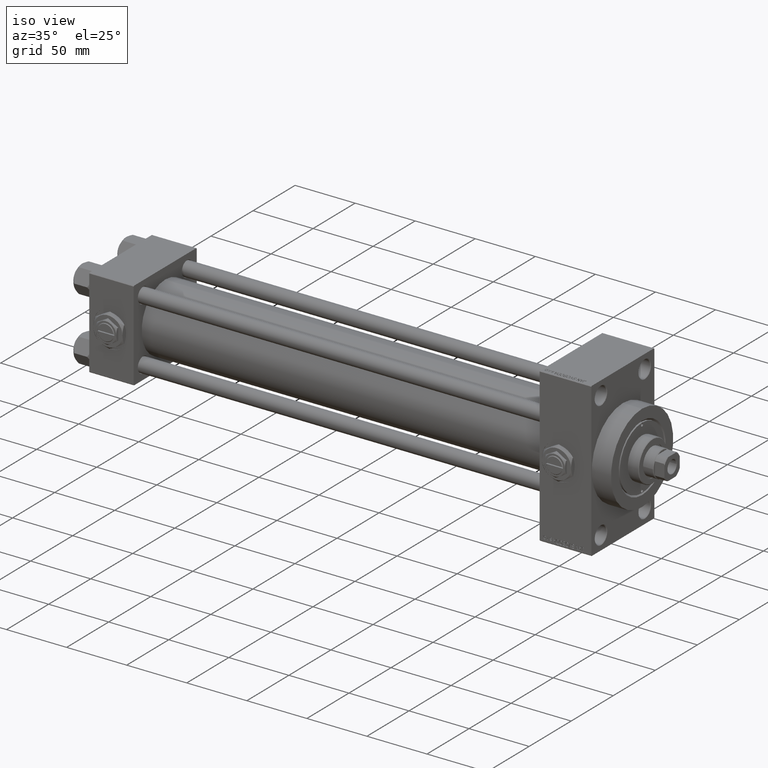
[diagram: clean part render]
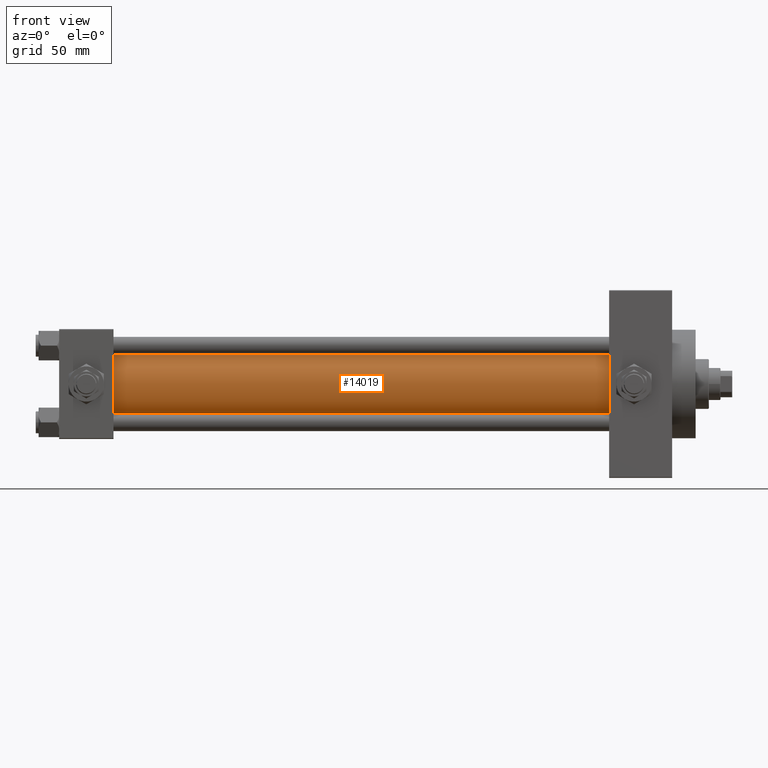
[diagram: tour spotlight — one face highlighted and labeled with its STEP entity id]
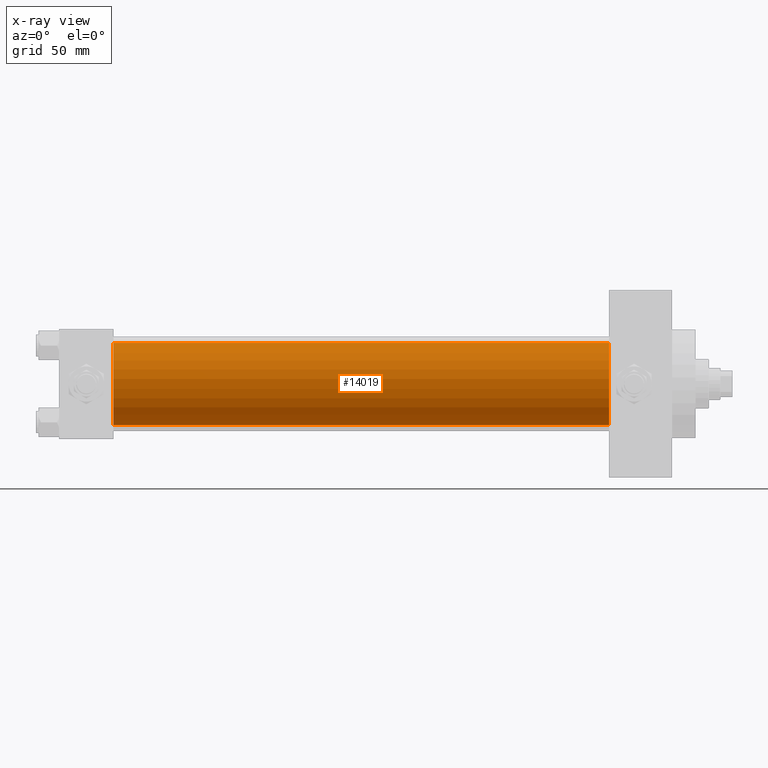
[diagram: x-ray of the same camera — body ghosted, this tour face saturated]
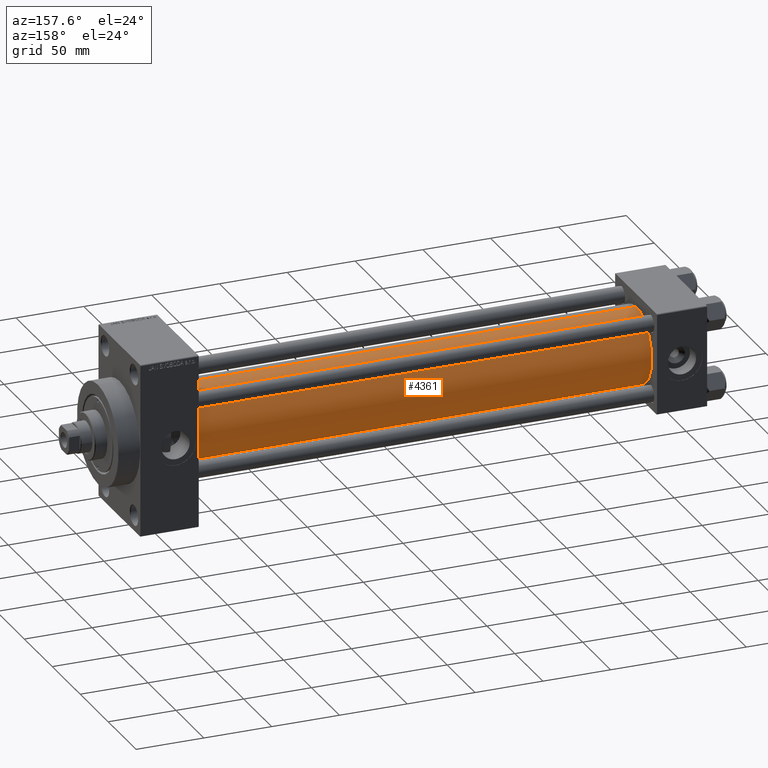
[diagram: tour spotlight — one face highlighted and labeled with its STEP entity id]
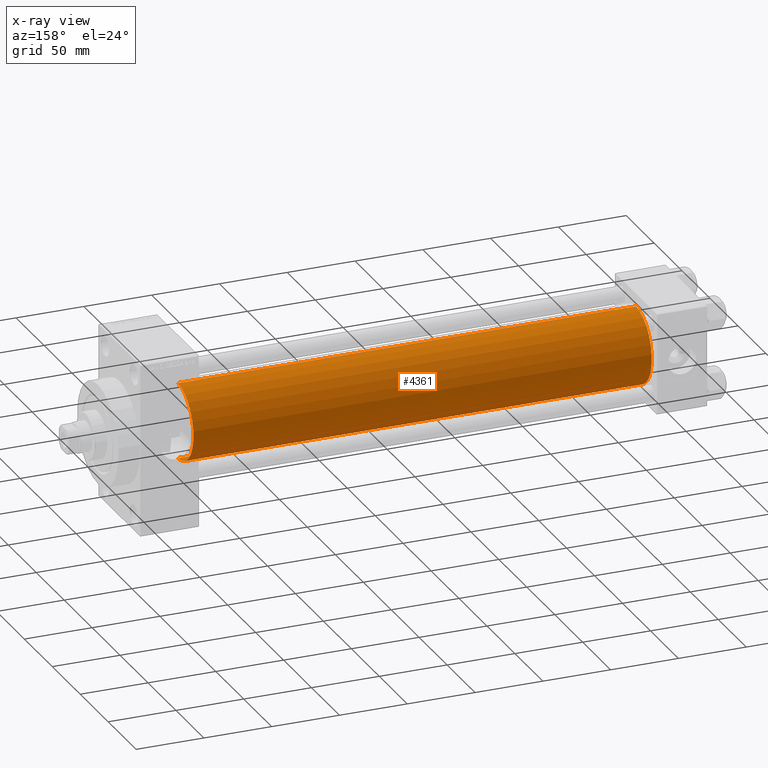
[diagram: x-ray of the same camera — body ghosted, this tour face saturated]
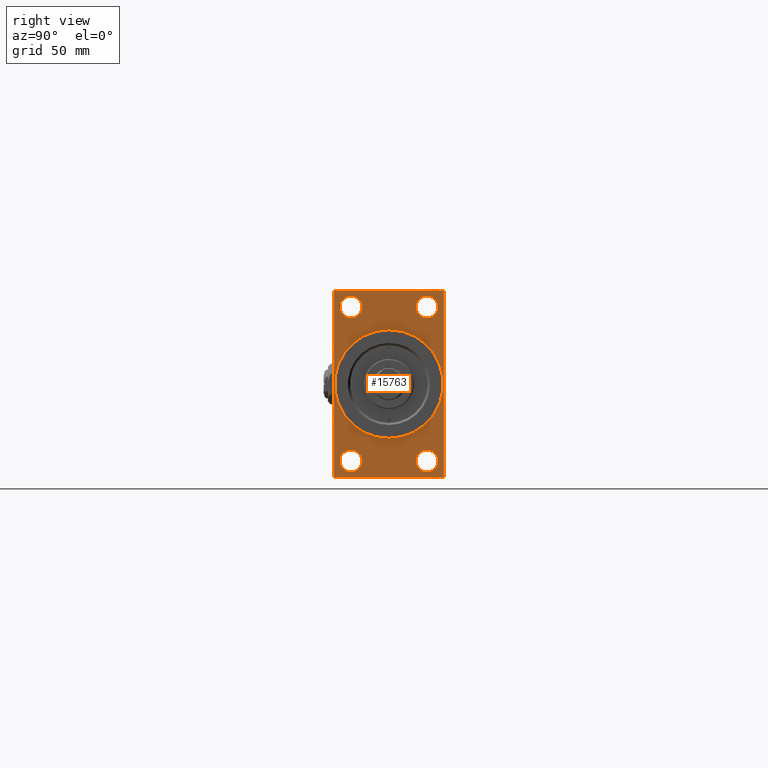
[diagram: tour spotlight — one face highlighted and labeled with its STEP entity id]
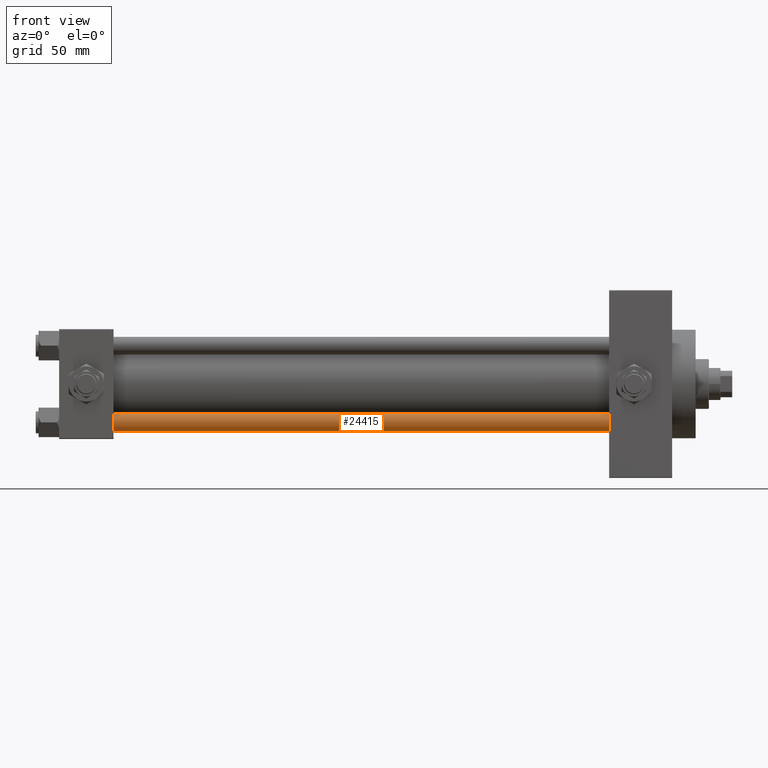
[diagram: tour spotlight — one face highlighted and labeled with its STEP entity id]
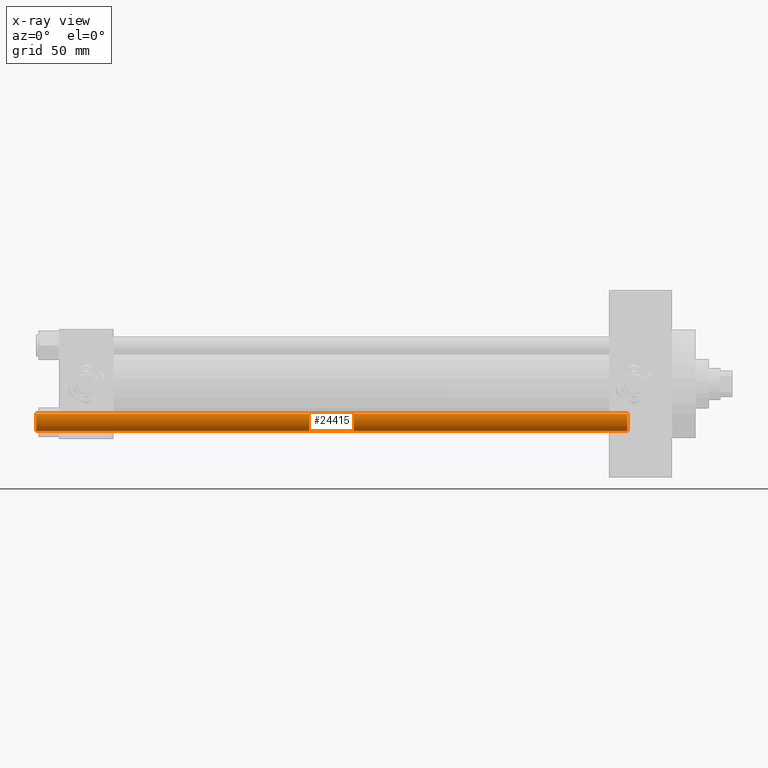
[diagram: x-ray of the same camera — body ghosted, this tour face saturated]
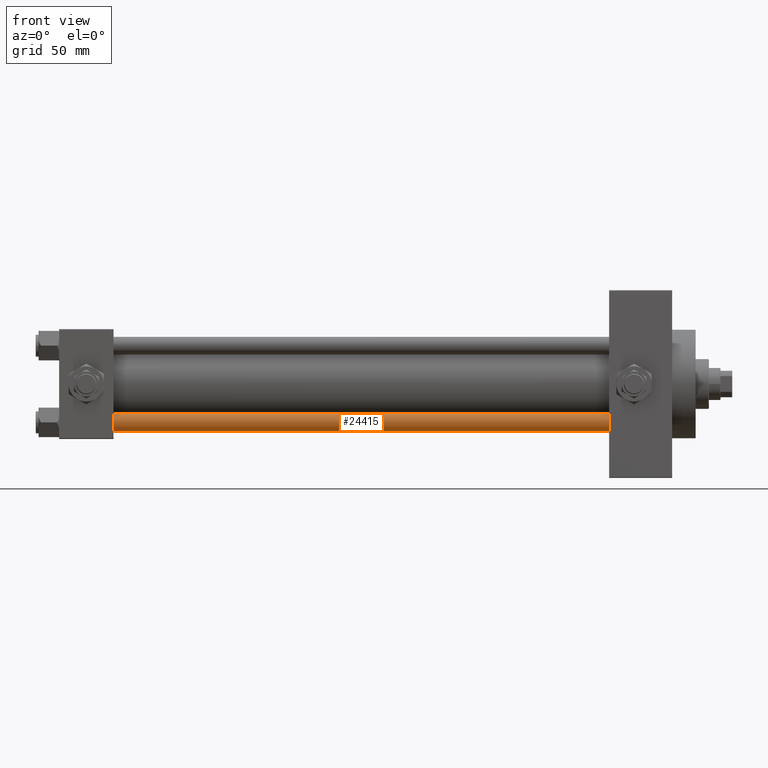
[diagram: tour spotlight — one face highlighted and labeled with its STEP entity id]
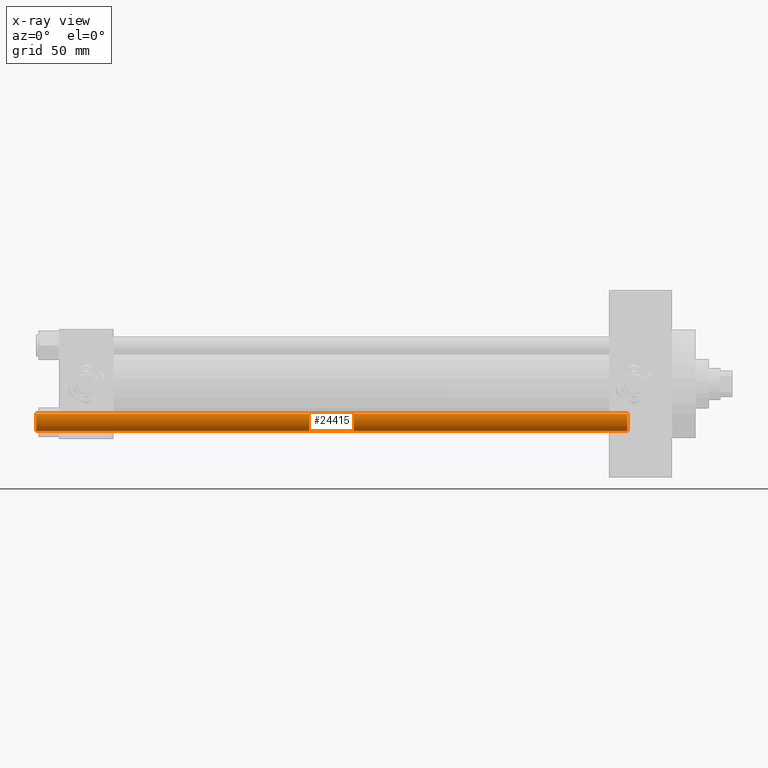
[diagram: x-ray of the same camera — body ghosted, this tour face saturated]
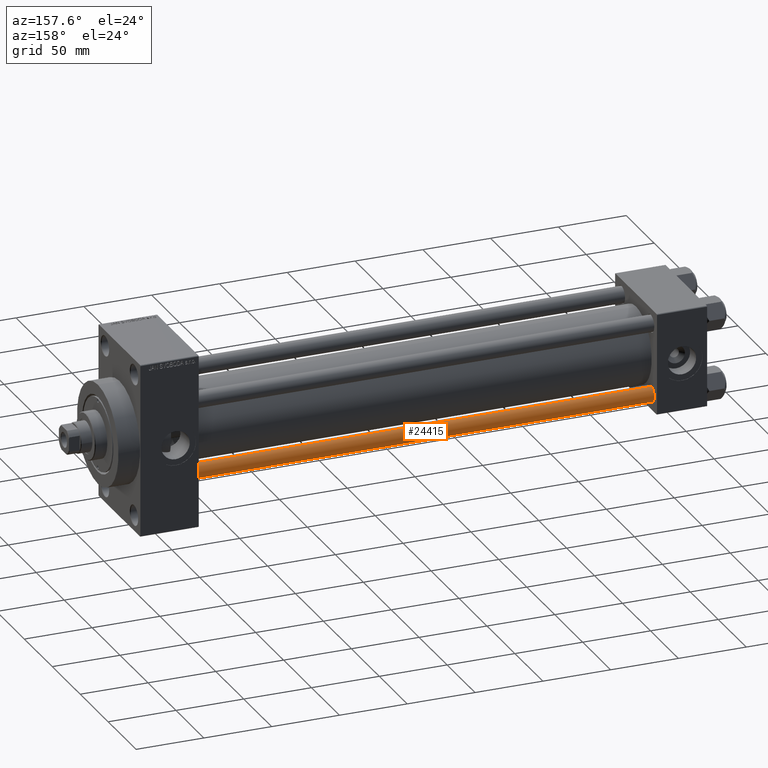
[diagram: tour spotlight — one face highlighted and labeled with its STEP entity id]
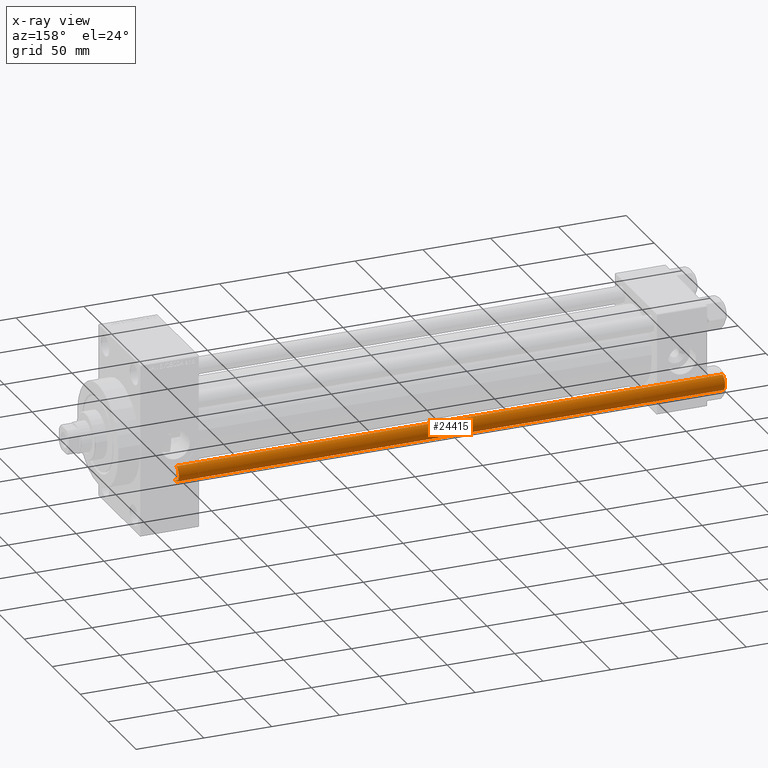
[diagram: x-ray of the same camera — body ghosted, this tour face saturated]
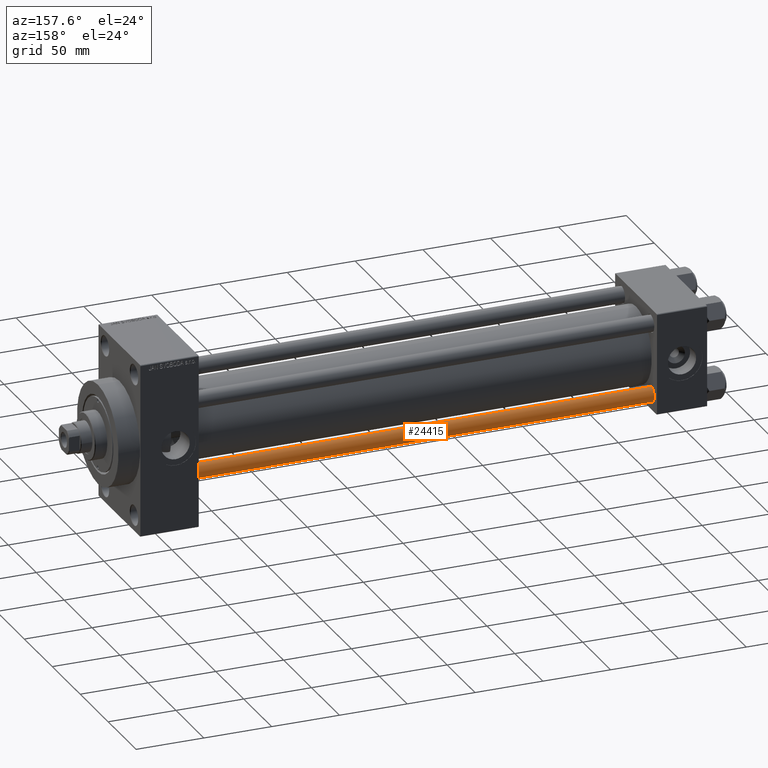
[diagram: tour spotlight — one face highlighted and labeled with its STEP entity id]
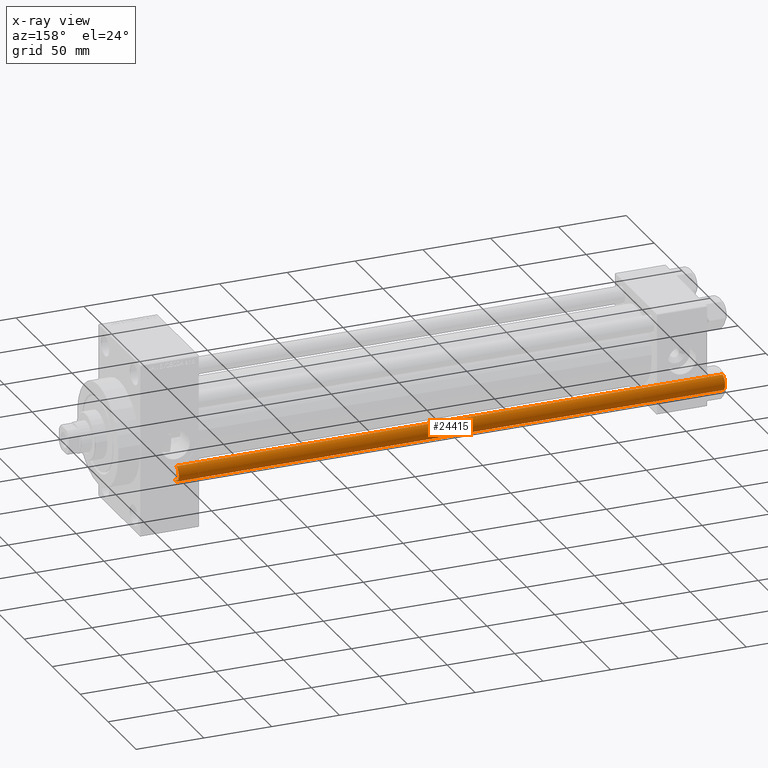
[diagram: x-ray of the same camera — body ghosted, this tour face saturated]
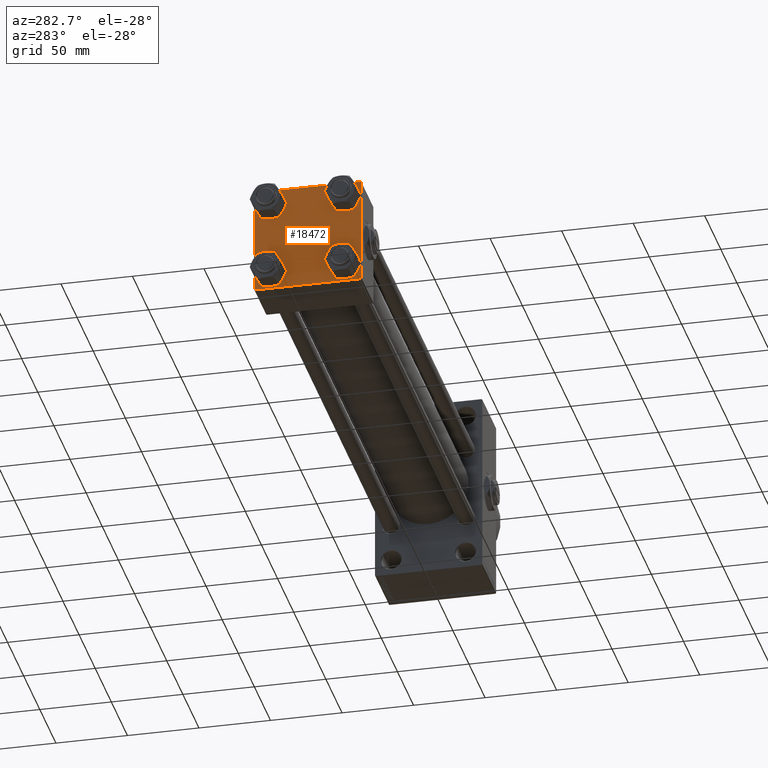
[diagram: tour spotlight — one face highlighted and labeled with its STEP entity id]
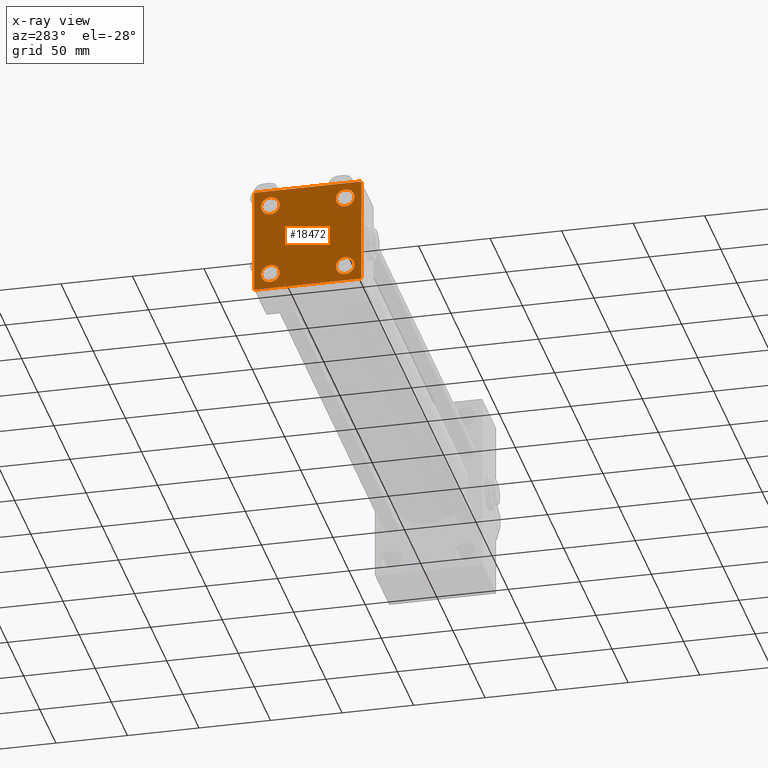
[diagram: x-ray of the same camera — body ghosted, this tour face saturated]
A machine part: a face-by-face anatomy tour. The part has 1213 B-rep faces; the first image is the clean iso view, then the 8 largest visible faces are spotlighted one at a time (largest first), each with its STEP entity span.

Face 1 — front view, entity #14019. An x-ray twin of the same camera follows (body ghosted, this face saturated) — the face is partly hidden behind the body. In plain terms, the highlighted cylindrical surface (partial cylindrical patch) has radius 28 mm, axis along (-1, -0, -0).
Definition (entity closure, byte-faithful):
#981 = AXIS2_PLACEMENT_3D ( 'NONE', #29800, #11752, #46017 ) ;
#1818 = VECTOR ( 'NONE', #15557, 1000.000000000000000 ) ;
#3479 = ORIENTED_EDGE ( 'NONE', *, *, #10142, .T. ) ;
#3961 = DIRECTION ( 'NONE',  ( 0.000000000000000000, 0.000000000000000000, -1.000000000000000000 ) ) ;
#5484 = EDGE_CURVE ( 'NONE', #12049, #37343, #42543, .T. ) ;
#5847 = VECTOR ( 'NONE', #7172, 1000.000000000000000 ) ;
#6107 = EDGE_CURVE ( 'NONE', #9753, #13576, #26195, .T. ) ;
#7172 = DIRECTION ( 'NONE',  ( -1.000000000000000000, -0.000000000000000000, -0.000000000000000000 ) ) ;
#8031 = CARTESIAN_POINT ( 'NONE',  ( 375.0000000000000000, -2.602085213965210642E-15, 28.00000000000000000 ) ) ;
#9753 = VERTEX_POINT ( 'NONE', #43859 ) ;
#10142 = EDGE_CURVE ( 'NONE', #37343, #13576, #16990, .T. ) ;
#10837 = CYLINDRICAL_SURFACE ( 'NONE', #20305, 28.00000000000000000 ) ;
#11752 = DIRECTION ( 'NONE',  ( 1.000000000000000000, -0.000000000000000000, 0.000000000000000000 ) ) ;
#12049 = VERTEX_POINT ( 'NONE', #28073 ) ;
#13576 = VERTEX_POINT ( 'NONE', #21936 ) ;
#14019 = ADVANCED_FACE ( 'NONE', ( #42774 ), #10837, .T. ) ;
#14435 = CARTESIAN_POINT ( 'NONE',  ( 375.0000000000000000, 8.269258236473784371E-16, -28.00000000000000000 ) ) ;
#15557 = DIRECTION ( 'NONE',  ( -1.000000000000000000, -0.000000000000000000, -0.000000000000000000 ) ) ;
#16990 = CIRCLE ( 'NONE', #981, 28.00000000000000000 ) ;
#19671 = ORIENTED_EDGE ( 'NONE', *, *, #6107, .F. ) ;
#20305 = AXIS2_PLACEMENT_3D ( 'NONE', #35290, #37621, #23542 ) ;
#21936 = CARTESIAN_POINT ( 'NONE',  ( 36.99999999999997868, 8.269258236473784371E-16, -28.00000000000000000 ) ) ;
#22989 = DIRECTION ( 'NONE',  ( 1.000000000000000000, 0.000000000000000000, 0.000000000000000000 ) ) ;
#23542 = DIRECTION ( 'NONE',  ( 0.000000000000000000, 0.000000000000000000, 1.000000000000000000 ) ) ;
#25685 = CIRCLE ( 'NONE', #32858, 28.00000000000000000 ) ;
#26195 = LINE ( 'NONE', #14435, #5847 ) ;
#28073 = CARTESIAN_POINT ( 'NONE',  ( 375.0000000000000000, -2.602085213965210642E-15, 28.00000000000000000 ) ) ;
#28980 = EDGE_LOOP ( 'NONE', ( #19671, #35380, #34562, #3479 ) ) ;
#29800 = CARTESIAN_POINT ( 'NONE',  ( 36.99999999999997868, -2.602085213965210642E-15, 0.000000000000000000 ) ) ;
#32858 = AXIS2_PLACEMENT_3D ( 'NONE', #41746, #22989, #3961 ) ;
#33607 = EDGE_CURVE ( 'NONE', #12049, #9753, #25685, .T. ) ;
#34562 = ORIENTED_EDGE ( 'NONE', *, *, #5484, .T. ) ;
#35290 = CARTESIAN_POINT ( 'NONE',  ( 375.0000000000000000, -2.602085213965210642E-15, 0.000000000000000000 ) ) ;
#35380 = ORIENTED_EDGE ( 'NONE', *, *, #33607, .F. ) ;
#37343 = VERTEX_POINT ( 'NONE', #41493 ) ;
#37621 = DIRECTION ( 'NONE',  ( -1.000000000000000000, -0.000000000000000000, -0.000000000000000000 ) ) ;
#41493 = CARTESIAN_POINT ( 'NONE',  ( 36.99999999999997868, -2.602085213965210642E-15, 28.00000000000000000 ) ) ;
#41746 = CARTESIAN_POINT ( 'NONE',  ( 375.0000000000000000, -2.602085213965210642E-15, 0.000000000000000000 ) ) ;
#42543 = LINE ( 'NONE', #8031, #1818 ) ;
#42774 = FACE_OUTER_BOUND ( 'NONE', #28980, .T. ) ;
#43859 = CARTESIAN_POINT ( 'NONE',  ( 375.0000000000000000, 8.269258236473784371E-16, -28.00000000000000000 ) ) ;
#46017 = DIRECTION ( 'NONE',  ( 0.000000000000000000, 0.000000000000000000, 1.000000000000000000 ) ) ;

Face 2 — auxiliary view, entity #4361. An x-ray twin of the same camera follows (body ghosted, this face saturated) — the face is partly hidden behind the body. In plain terms, the highlighted cylindrical surface (partial cylindrical patch) has radius 28 mm, axis along (-1, -0, -0).
Definition (entity closure, byte-faithful):
#1818 = VECTOR ( 'NONE', #15557, 1000.000000000000000 ) ;
#2977 = DIRECTION ( 'NONE',  ( 0.000000000000000000, 0.000000000000000000, -1.000000000000000000 ) ) ;
#3352 = CIRCLE ( 'NONE', #20983, 28.00000000000000000 ) ;
#4361 = ADVANCED_FACE ( 'NONE', ( #14863 ), #33374, .T. ) ;
#4537 = CARTESIAN_POINT ( 'NONE',  ( 36.99999999999997868, -2.602085213965210642E-15, 0.000000000000000000 ) ) ;
#5220 = ORIENTED_EDGE ( 'NONE', *, *, #7725, .T. ) ;
#5484 = EDGE_CURVE ( 'NONE', #12049, #37343, #42543, .T. ) ;
#5847 = VECTOR ( 'NONE', #7172, 1000.000000000000000 ) ;
#6107 = EDGE_CURVE ( 'NONE', #9753, #13576, #26195, .T. ) ;
#7172 = DIRECTION ( 'NONE',  ( -1.000000000000000000, -0.000000000000000000, -0.000000000000000000 ) ) ;
#7247 = DIRECTION ( 'NONE',  ( 1.000000000000000000, 0.000000000000000000, 0.000000000000000000 ) ) ;
#7589 = DIRECTION ( 'NONE',  ( -1.000000000000000000, -0.000000000000000000, -0.000000000000000000 ) ) ;
#7725 = EDGE_CURVE ( 'NONE', #13576, #37343, #3352, .T. ) ;
#8031 = CARTESIAN_POINT ( 'NONE',  ( 375.0000000000000000, -2.602085213965210642E-15, 28.00000000000000000 ) ) ;
#9512 = DIRECTION ( 'NONE',  ( 0.000000000000000000, 0.000000000000000000, 1.000000000000000000 ) ) ;
#9753 = VERTEX_POINT ( 'NONE', #43859 ) ;
#11881 = EDGE_LOOP ( 'NONE', ( #19194, #28594, #5220, #29021 ) ) ;
#12049 = VERTEX_POINT ( 'NONE', #28073 ) ;
#13576 = VERTEX_POINT ( 'NONE', #21936 ) ;
#14435 = CARTESIAN_POINT ( 'NONE',  ( 375.0000000000000000, 8.269258236473784371E-16, -28.00000000000000000 ) ) ;
#14863 = FACE_OUTER_BOUND ( 'NONE', #11881, .T. ) ;
#15557 = DIRECTION ( 'NONE',  ( -1.000000000000000000, -0.000000000000000000, -0.000000000000000000 ) ) ;
#19194 = ORIENTED_EDGE ( 'NONE', *, *, #39806, .F. ) ;
#20983 = AXIS2_PLACEMENT_3D ( 'NONE', #4537, #31565, #9512 ) ;
#21936 = CARTESIAN_POINT ( 'NONE',  ( 36.99999999999997868, 8.269258236473784371E-16, -28.00000000000000000 ) ) ;
#25634 = DIRECTION ( 'NONE',  ( 0.000000000000000000, 0.000000000000000000, 1.000000000000000000 ) ) ;
#26195 = LINE ( 'NONE', #14435, #5847 ) ;
#28073 = CARTESIAN_POINT ( 'NONE',  ( 375.0000000000000000, -2.602085213965210642E-15, 28.00000000000000000 ) ) ;
#28594 = ORIENTED_EDGE ( 'NONE', *, *, #6107, .T. ) ;
#29021 = ORIENTED_EDGE ( 'NONE', *, *, #5484, .F. ) ;
#31565 = DIRECTION ( 'NONE',  ( 1.000000000000000000, -0.000000000000000000, 0.000000000000000000 ) ) ;
#33374 = CYLINDRICAL_SURFACE ( 'NONE', #36171, 28.00000000000000000 ) ;
#36171 = AXIS2_PLACEMENT_3D ( 'NONE', #49352, #7589, #25634 ) ;
#36611 = AXIS2_PLACEMENT_3D ( 'NONE', #48763, #7247, #2977 ) ;
#37343 = VERTEX_POINT ( 'NONE', #41493 ) ;
#39806 = EDGE_CURVE ( 'NONE', #9753, #12049, #42163, .T. ) ;
#41493 = CARTESIAN_POINT ( 'NONE',  ( 36.99999999999997868, -2.602085213965210642E-15, 28.00000000000000000 ) ) ;
#42163 = CIRCLE ( 'NONE', #36611, 28.00000000000000000 ) ;
#42543 = LINE ( 'NONE', #8031, #1818 ) ;
#43859 = CARTESIAN_POINT ( 'NONE',  ( 375.0000000000000000, 8.269258236473784371E-16, -28.00000000000000000 ) ) ;
#48763 = CARTESIAN_POINT ( 'NONE',  ( 375.0000000000000000, -2.602085213965210642E-15, 0.000000000000000000 ) ) ;
#49352 = CARTESIAN_POINT ( 'NONE',  ( 375.0000000000000000, -2.602085213965210642E-15, 0.000000000000000000 ) ) ;

Face 3 — right view, entity #15763. In plain terms, the highlighted planar face has unit normal (-1, 0, 0).
Definition (entity closure, byte-faithful):
#1226 = CIRCLE ( 'NONE', #23652, 7.500000000000007105 ) ;
#1706 = DIRECTION ( 'NONE',  ( 0.000000000000000000, 0.000000000000000000, 1.000000000000000000 ) ) ;
#1962 = CARTESIAN_POINT ( 'NONE',  ( 418.0000000000000000, 36.99999999999999289, -64.00000000000000000 ) ) ;
#2088 = DIRECTION ( 'NONE',  ( -1.000000000000000000, 0.000000000000000000, -0.000000000000000000 ) ) ;
#2542 = ORIENTED_EDGE ( 'NONE', *, *, #18130, .T. ) ;
#2913 = DIRECTION ( 'NONE',  ( -0.000000000000000000, -0.7071067811865916486, -0.7071067811865033859 ) ) ;
#3733 = CARTESIAN_POINT ( 'NONE',  ( 418.0000000000000000, -37.49999999999999289, 63.49999999999991473 ) ) ;
#3735 = AXIS2_PLACEMENT_3D ( 'NONE', #10193, #18717, #33233 ) ;
#3916 = CIRCLE ( 'NONE', #27939, 7.500000000000007105 ) ;
#4702 = CARTESIAN_POINT ( 'NONE',  ( 418.0000000000000000, -25.99999999999999645, 52.50000000000000000 ) ) ;
#4995 = DIRECTION ( 'NONE',  ( -0.000000000000000000, 0.7071067811865573427, 0.7071067811865378028 ) ) ;
#5031 = VERTEX_POINT ( 'NONE', #5891 ) ;
#5228 = VERTEX_POINT ( 'NONE', #6069 ) ;
#5742 = EDGE_LOOP ( 'NONE', ( #34133, #45481 ) ) ;
#5891 = CARTESIAN_POINT ( 'NONE',  ( 418.0000000000000000, 37.49999999999999289, -63.50000000000001421 ) ) ;
#6069 = CARTESIAN_POINT ( 'NONE',  ( 418.0000000000000000, -25.99999999999999645, 44.99999999999999289 ) ) ;
#6079 = VECTOR ( 'NONE', #2913, 1000.000000000000114 ) ;
#6226 = DIRECTION ( 'NONE',  ( -1.000000000000000000, 0.000000000000000000, -0.000000000000000000 ) ) ;
#6230 = CARTESIAN_POINT ( 'NONE',  ( 418.0000000000000000, -25.99999999999999645, -52.49999999999999289 ) ) ;
#6282 = ORIENTED_EDGE ( 'NONE', *, *, #27920, .T. ) ;
#6866 = DIRECTION ( 'NONE',  ( 0.000000000000000000, -5.421010862427522170E-17, -1.000000000000000000 ) ) ;
#6996 = AXIS2_PLACEMENT_3D ( 'NONE', #24755, #6226, #1706 ) ;
#8152 = CARTESIAN_POINT ( 'NONE',  ( 418.0000000000000000, -36.99999999999987210, 63.99999999999997158 ) ) ;
#8218 = VERTEX_POINT ( 'NONE', #49130 ) ;
#9290 = CARTESIAN_POINT ( 'NONE',  ( 418.0000000000000000, 26.00000000000000000, -60.00000000000000000 ) ) ;
#9624 = FACE_BOUND ( 'NONE', #45521, .T. ) ;
#10193 = CARTESIAN_POINT ( 'NONE',  ( 418.0000000000000000, 26.00000000000000000, -52.49999999999999289 ) ) ;
#11098 = DIRECTION ( 'NONE',  ( -0.000000000000000000, 0.000000000000000000, 1.000000000000000000 ) ) ;
#11804 = CARTESIAN_POINT ( 'NONE',  ( 418.0000000000000000, -36.99999999999999289, -64.00000000000001421 ) ) ;
#12640 = EDGE_CURVE ( 'NONE', #29252, #8218, #14663, .T. ) ;
#13212 = EDGE_CURVE ( 'NONE', #47708, #30071, #35027, .T. ) ;
#13225 = CARTESIAN_POINT ( 'NONE',  ( 418.0000000000000000, 37.50000000000000000, 63.49999999999998579 ) ) ;
#13368 = DIRECTION ( 'NONE',  ( 0.000000000000000000, 0.000000000000000000, -1.000000000000000000 ) ) ;
#13717 = CIRCLE ( 'NONE', #46443, 7.500000000000007105 ) ;
#13870 = ORIENTED_EDGE ( 'NONE', *, *, #26112, .F. ) ;
#14374 = DIRECTION ( 'NONE',  ( -1.000000000000000000, 0.000000000000000000, -0.000000000000000000 ) ) ;
#14663 = CIRCLE ( 'NONE', #48990, 37.00000000000000000 ) ;
#14956 = EDGE_LOOP ( 'NONE', ( #28299, #22821 ) ) ;
#15595 = CARTESIAN_POINT ( 'NONE',  ( 418.0000000000000000, -37.49999999999999289, -63.50000000000002842 ) ) ;
#15763 = ADVANCED_FACE ( 'NONE', ( #28414, #43650, #24669, #43898, #9624, #24914 ), #25649, .F. ) ;
#16155 = LINE ( 'NONE', #39893, #29608 ) ;
#16254 = VERTEX_POINT ( 'NONE', #24052 ) ;
#16902 = DIRECTION ( 'NONE',  ( -1.000000000000000000, 0.000000000000000000, -0.000000000000000000 ) ) ;
#17444 = EDGE_CURVE ( 'NONE', #48277, #44463, #47559, .T. ) ;
#17690 = ORIENTED_EDGE ( 'NONE', *, *, #42951, .T. ) ;
#17877 = CARTESIAN_POINT ( 'NONE',  ( 418.0000000000000000, -25.99999999999999645, 52.50000000000000000 ) ) ;
#18130 = EDGE_CURVE ( 'NONE', #34725, #18586, #1226, .T. ) ;
#18212 = CARTESIAN_POINT ( 'NONE',  ( 418.0000000000000000, 37.00000000000000000, 63.99999999999998579 ) ) ;
#18586 = VERTEX_POINT ( 'NONE', #49361 ) ;
#18717 = DIRECTION ( 'NONE',  ( -1.000000000000000000, 0.000000000000000000, -0.000000000000000000 ) ) ;
#18874 = CARTESIAN_POINT ( 'NONE',  ( 418.0000000000000000, 0.000000000000000000, 0.000000000000000000 ) ) ;
#18929 = CIRCLE ( 'NONE', #3735, 7.500000000000007105 ) ;
#18939 = LINE ( 'NONE', #33217, #6079 ) ;
#19158 = DIRECTION ( 'NONE',  ( -1.000000000000000000, 0.000000000000000000, -0.000000000000000000 ) ) ;
#19315 = EDGE_CURVE ( 'NONE', #19500, #23452, #18939, .T. ) ;
#19500 = VERTEX_POINT ( 'NONE', #8152 ) ;
#19522 = LINE ( 'NONE', #27030, #36039 ) ;
#19574 = LINE ( 'NONE', #11804, #36645 ) ;
#19831 = AXIS2_PLACEMENT_3D ( 'NONE', #4702, #39480, #43455 ) ;
#20850 = AXIS2_PLACEMENT_3D ( 'NONE', #32835, #40815, #22067 ) ;
#21022 = CARTESIAN_POINT ( 'NONE',  ( 418.0000000000000000, 26.00000000000000000, 52.49999999999999289 ) ) ;
#21458 = EDGE_LOOP ( 'NONE', ( #17690, #25617 ) ) ;
#21931 = ORIENTED_EDGE ( 'NONE', *, *, #24591, .T. ) ;
#21973 = CARTESIAN_POINT ( 'NONE',  ( 418.0000000000000000, 37.50000000000000000, 63.99999999999998579 ) ) ;
#22067 = DIRECTION ( 'NONE',  ( 0.000000000000000000, 0.000000000000000000, -1.000000000000000000 ) ) ;
#22217 = VERTEX_POINT ( 'NONE', #27103 ) ;
#22733 = CARTESIAN_POINT ( 'NONE',  ( 418.0000000000000000, 26.00000000000000000, 44.99999999999998579 ) ) ;
#22821 = ORIENTED_EDGE ( 'NONE', *, *, #24576, .T. ) ;
#23452 = VERTEX_POINT ( 'NONE', #3733 ) ;
#23652 = AXIS2_PLACEMENT_3D ( 'NONE', #21022, #44013, #37193 ) ;
#24052 = CARTESIAN_POINT ( 'NONE',  ( 418.0000000000000000, -25.99999999999999645, 60.00000000000000711 ) ) ;
#24384 = ORIENTED_EDGE ( 'NONE', *, *, #25204, .T. ) ;
#24576 = EDGE_CURVE ( 'NONE', #44463, #48277, #18929, .T. ) ;
#24591 = EDGE_CURVE ( 'NONE', #22217, #19500, #45453, .T. ) ;
#24669 = FACE_BOUND ( 'NONE', #14956, .T. ) ;
#24755 = CARTESIAN_POINT ( 'NONE',  ( 418.0000000000000000, 26.00000000000000000, 52.49999999999999289 ) ) ;
#24890 = CARTESIAN_POINT ( 'NONE',  ( 418.0000000000000000, 0.000000000000000000, 0.000000000000000000 ) ) ;
#24914 = FACE_OUTER_BOUND ( 'NONE', #46001, .T. ) ;
#25050 = CARTESIAN_POINT ( 'NONE',  ( 418.0000000000000000, -25.99999999999999645, -60.00000000000000000 ) ) ;
#25099 = VECTOR ( 'NONE', #27534, 1000.000000000000000 ) ;
#25204 = EDGE_CURVE ( 'NONE', #18586, #34725, #33351, .T. ) ;
#25617 = ORIENTED_EDGE ( 'NONE', *, *, #48343, .T. ) ;
#25649 = PLANE ( 'NONE',  #33938 ) ;
#26112 = EDGE_CURVE ( 'NONE', #40788, #5031, #44629, .T. ) ;
#27030 = CARTESIAN_POINT ( 'NONE',  ( 418.0000000000000000, 37.49999999999999289, -63.50000000000001421 ) ) ;
#27103 = CARTESIAN_POINT ( 'NONE',  ( 418.0000000000000000, 37.00000000000000000, 63.99999999999998579 ) ) ;
#27534 = DIRECTION ( 'NONE',  ( 0.000000000000000000, -1.000000000000000000, -1.850371707708594563E-16 ) ) ;
#27920 = EDGE_CURVE ( 'NONE', #40788, #22217, #37211, .T. ) ;
#27939 = AXIS2_PLACEMENT_3D ( 'NONE', #37922, #19158, #46650 ) ;
#28299 = ORIENTED_EDGE ( 'NONE', *, *, #17444, .T. ) ;
#28414 = FACE_BOUND ( 'NONE', #5742, .T. ) ;
#28903 = AXIS2_PLACEMENT_3D ( 'NONE', #6230, #39756, #29003 ) ;
#29003 = DIRECTION ( 'NONE',  ( 0.000000000000000000, 0.000000000000000000, 1.000000000000000000 ) ) ;
#29252 = VERTEX_POINT ( 'NONE', #38155 ) ;
#29427 = ORIENTED_EDGE ( 'NONE', *, *, #33270, .F. ) ;
#29608 = VECTOR ( 'NONE', #13368, 1000.000000000000000 ) ;
#29962 = ORIENTED_EDGE ( 'NONE', *, *, #47539, .T. ) ;
#30071 = VERTEX_POINT ( 'NONE', #48369 ) ;
#30262 = VERTEX_POINT ( 'NONE', #15595 ) ;
#30343 = DIRECTION ( 'NONE',  ( 0.000000000000000000, 0.7071067811865573427, -0.7071067811865378028 ) ) ;
#31053 = CARTESIAN_POINT ( 'NONE',  ( 418.0000000000000000, 26.00000000000000000, -44.99999999999998579 ) ) ;
#31853 = EDGE_CURVE ( 'NONE', #23452, #30262, #16155, .T. ) ;
#32158 = DIRECTION ( 'NONE',  ( 0.000000000000000000, 0.000000000000000000, 1.000000000000000000 ) ) ;
#32410 = AXIS2_PLACEMENT_3D ( 'NONE', #46402, #16902, #32158 ) ;
#32545 = ORIENTED_EDGE ( 'NONE', *, *, #41499, .T. ) ;
#32631 = DIRECTION ( 'NONE',  ( 1.000000000000000000, 0.000000000000000000, 0.000000000000000000 ) ) ;
#32835 = CARTESIAN_POINT ( 'NONE',  ( 418.0000000000000000, 0.000000000000000000, 0.000000000000000000 ) ) ;
#33217 = CARTESIAN_POINT ( 'NONE',  ( 418.0000000000000000, -37.49999999999999289, 63.49999999999991473 ) ) ;
#33233 = DIRECTION ( 'NONE',  ( 0.000000000000000000, 0.000000000000000000, 1.000000000000000000 ) ) ;
#33270 = EDGE_CURVE ( 'NONE', #8218, #29252, #43222, .T. ) ;
#33351 = CIRCLE ( 'NONE', #6996, 7.500000000000007105 ) ;
#33417 = VERTEX_POINT ( 'NONE', #47277 ) ;
#33465 = DIRECTION ( 'NONE',  ( 0.000000000000000000, -0.7071067811865474617, 0.7071067811865474617 ) ) ;
#33676 = CIRCLE ( 'NONE', #28903, 7.500000000000007105 ) ;
#33938 = AXIS2_PLACEMENT_3D ( 'NONE', #18874, #14374, #11098 ) ;
#34133 = ORIENTED_EDGE ( 'NONE', *, *, #48680, .T. ) ;
#34215 = CIRCLE ( 'NONE', #19831, 7.500000000000007105 ) ;
#34725 = VERTEX_POINT ( 'NONE', #22733 ) ;
#35027 = LINE ( 'NONE', #38047, #25099 ) ;
#36039 = VECTOR ( 'NONE', #4995, 1000.000000000000000 ) ;
#36645 = VECTOR ( 'NONE', #30343, 1000.000000000000000 ) ;
#36673 = ORIENTED_EDGE ( 'NONE', *, *, #31853, .T. ) ;
#36724 = EDGE_CURVE ( 'NONE', #16254, #5228, #34215, .T. ) ;
#36986 = DIRECTION ( 'NONE',  ( 0.000000000000000000, -1.000000000000000000, -1.850371707708594563E-16 ) ) ;
#37077 = ORIENTED_EDGE ( 'NONE', *, *, #19315, .T. ) ;
#37193 = DIRECTION ( 'NONE',  ( 0.000000000000000000, 0.000000000000000000, 1.000000000000000000 ) ) ;
#37211 = LINE ( 'NONE', #18212, #43010 ) ;
#37922 = CARTESIAN_POINT ( 'NONE',  ( 418.0000000000000000, -25.99999999999999645, -52.49999999999999289 ) ) ;
#38047 = CARTESIAN_POINT ( 'NONE',  ( 418.0000000000000000, 37.49999999999999289, -64.00000000000000000 ) ) ;
#38155 = CARTESIAN_POINT ( 'NONE',  ( 418.0000000000000000, 4.531193156845206793E-15, -37.00000000000000000 ) ) ;
#39480 = DIRECTION ( 'NONE',  ( -1.000000000000000000, 0.000000000000000000, -0.000000000000000000 ) ) ;
#39706 = VERTEX_POINT ( 'NONE', #25050 ) ;
#39756 = DIRECTION ( 'NONE',  ( -1.000000000000000000, 0.000000000000000000, -0.000000000000000000 ) ) ;
#39779 = VECTOR ( 'NONE', #6866, 1000.000000000000000 ) ;
#39893 = CARTESIAN_POINT ( 'NONE',  ( 418.0000000000000000, -37.49999999999999289, 63.99999999999997158 ) ) ;
#40788 = VERTEX_POINT ( 'NONE', #13225 ) ;
#40815 = DIRECTION ( 'NONE',  ( 1.000000000000000000, 0.000000000000000000, 0.000000000000000000 ) ) ;
#41136 = CARTESIAN_POINT ( 'NONE',  ( 418.0000000000000000, 37.50000000000000000, 63.99999999999998579 ) ) ;
#41392 = ORIENTED_EDGE ( 'NONE', *, *, #13212, .F. ) ;
#41499 = EDGE_CURVE ( 'NONE', #30262, #30071, #19574, .T. ) ;
#42004 = EDGE_LOOP ( 'NONE', ( #2542, #24384 ) ) ;
#42951 = EDGE_CURVE ( 'NONE', #39706, #33417, #3916, .T. ) ;
#43010 = VECTOR ( 'NONE', #33465, 1000.000000000000114 ) ;
#43222 = CIRCLE ( 'NONE', #20850, 37.00000000000000000 ) ;
#43455 = DIRECTION ( 'NONE',  ( 0.000000000000000000, 0.000000000000000000, 1.000000000000000000 ) ) ;
#43650 = FACE_BOUND ( 'NONE', #21458, .T. ) ;
#43898 = FACE_BOUND ( 'NONE', #42004, .T. ) ;
#44013 = DIRECTION ( 'NONE',  ( -1.000000000000000000, 0.000000000000000000, -0.000000000000000000 ) ) ;
#44463 = VERTEX_POINT ( 'NONE', #31053 ) ;
#44610 = DIRECTION ( 'NONE',  ( 0.000000000000000000, 0.000000000000000000, 1.000000000000000000 ) ) ;
#44629 = LINE ( 'NONE', #41136, #39779 ) ;
#44647 = ORIENTED_EDGE ( 'NONE', *, *, #12640, .F. ) ;
#45453 = LINE ( 'NONE', #21973, #46089 ) ;
#45481 = ORIENTED_EDGE ( 'NONE', *, *, #36724, .T. ) ;
#45521 = EDGE_LOOP ( 'NONE', ( #29427, #44647 ) ) ;
#46001 = EDGE_LOOP ( 'NONE', ( #36673, #32545, #41392, #29962, #13870, #6282, #21931, #37077 ) ) ;
#46089 = VECTOR ( 'NONE', #36986, 1000.000000000000000 ) ;
#46402 = CARTESIAN_POINT ( 'NONE',  ( 418.0000000000000000, 26.00000000000000000, -52.49999999999999289 ) ) ;
#46443 = AXIS2_PLACEMENT_3D ( 'NONE', #17877, #2088, #44610 ) ;
#46650 = DIRECTION ( 'NONE',  ( 0.000000000000000000, 0.000000000000000000, 1.000000000000000000 ) ) ;
#47277 = CARTESIAN_POINT ( 'NONE',  ( 418.0000000000000000, -25.99999999999999645, -44.99999999999998579 ) ) ;
#47539 = EDGE_CURVE ( 'NONE', #47708, #5031, #19522, .T. ) ;
#47559 = CIRCLE ( 'NONE', #32410, 7.500000000000007105 ) ;
#47708 = VERTEX_POINT ( 'NONE', #1962 ) ;
#47872 = DIRECTION ( 'NONE',  ( 0.000000000000000000, 0.000000000000000000, -1.000000000000000000 ) ) ;
#48277 = VERTEX_POINT ( 'NONE', #9290 ) ;
#48343 = EDGE_CURVE ( 'NONE', #33417, #39706, #33676, .T. ) ;
#48369 = CARTESIAN_POINT ( 'NONE',  ( 418.0000000000000000, -36.99999999999999289, -64.00000000000001421 ) ) ;
#48680 = EDGE_CURVE ( 'NONE', #5228, #16254, #13717, .T. ) ;
#48990 = AXIS2_PLACEMENT_3D ( 'NONE', #24890, #32631, #47872 ) ;
#49130 = CARTESIAN_POINT ( 'NONE',  ( 418.0000000000000000, 0.000000000000000000, 37.00000000000000000 ) ) ;
#49361 = CARTESIAN_POINT ( 'NONE',  ( 418.0000000000000000, 26.00000000000000000, 60.00000000000000000 ) ) ;

Face 4 — front view, entity #24415. An x-ray twin of the same camera follows (body ghosted, this face saturated) — the face is partly hidden behind the body. In plain terms, the highlighted cylindrical surface (edge-blend (fillet) strip) has radius 6 mm, axis along (1, 0, 0).
Definition (entity closure, byte-faithful):
#217 = DIRECTION ( 'NONE',  ( -0.000000000000000000, -0.000000000000000000, -1.000000000000000000 ) ) ;
#401 = ORIENTED_EDGE ( 'NONE', *, *, #22884, .T. ) ;
#951 = CARTESIAN_POINT ( 'NONE',  ( -6.000000000000000888, 0.000000000000000000, 404.0000000000000000 ) ) ;
#2146 = DIRECTION ( 'NONE',  ( -0.000000000000000000, -0.000000000000000000, -1.000000000000000000 ) ) ;
#2355 = EDGE_CURVE ( 'NONE', #47360, #23879, #30490, .T. ) ;
#2648 = CARTESIAN_POINT ( 'NONE',  ( 6.000000000000000888, 7.347880794884120722E-16, 404.0000000000000000 ) ) ;
#3208 = ORIENTED_EDGE ( 'NONE', *, *, #2355, .T. ) ;
#7741 = DIRECTION ( 'NONE',  ( -0.000000000000000000, -0.000000000000000000, -1.000000000000000000 ) ) ;
#11301 = CARTESIAN_POINT ( 'NONE',  ( -6.000000000000000888, 0.000000000000000000, 0.5000000000000559552 ) ) ;
#11501 = CYLINDRICAL_SURFACE ( 'NONE', #17327, 6.000000000000000888 ) ;
#11521 = CARTESIAN_POINT ( 'NONE',  ( 6.000000000000000888, 7.347880794884120722E-16, 403.5000000000000000 ) ) ;
#13227 = VERTEX_POINT ( 'NONE', #11521 ) ;
#14232 = ORIENTED_EDGE ( 'NONE', *, *, #29826, .T. ) ;
#15933 = CARTESIAN_POINT ( 'NONE',  ( 0.000000000000000000, 0.000000000000000000, 0.5000000000000559552 ) ) ;
#16013 = FACE_OUTER_BOUND ( 'NONE', #26760, .T. ) ;
#16263 = DIRECTION ( 'NONE',  ( -1.000000000000000000, 0.000000000000000000, 0.000000000000000000 ) ) ;
#16755 = VECTOR ( 'NONE', #2146, 1000.000000000000000 ) ;
#16929 = AXIS2_PLACEMENT_3D ( 'NONE', #15933, #46426, #20172 ) ;
#17327 = AXIS2_PLACEMENT_3D ( 'NONE', #20000, #217, #16263 ) ;
#18566 = ORIENTED_EDGE ( 'NONE', *, *, #23508, .F. ) ;
#19729 = CARTESIAN_POINT ( 'NONE',  ( -6.000000000000000888, 0.000000000000000000, 403.5000000000000000 ) ) ;
#19995 = LINE ( 'NONE', #951, #38857 ) ;
#20000 = CARTESIAN_POINT ( 'NONE',  ( 0.000000000000000000, 0.000000000000000000, 404.0000000000000000 ) ) ;
#20172 = DIRECTION ( 'NONE',  ( 1.000000000000000000, 0.000000000000000000, 0.000000000000000000 ) ) ;
#22884 = EDGE_CURVE ( 'NONE', #33707, #13227, #42055, .T. ) ;
#23508 = EDGE_CURVE ( 'NONE', #33707, #23879, #19995, .T. ) ;
#23879 = VERTEX_POINT ( 'NONE', #11301 ) ;
#24415 = ADVANCED_FACE ( 'NONE', ( #16013 ), #11501, .T. ) ;
#26760 = EDGE_LOOP ( 'NONE', ( #401, #14232, #3208, #18566 ) ) ;
#29063 = CARTESIAN_POINT ( 'NONE',  ( 6.000000000000000888, 7.347880794884120722E-16, 0.5000000000000559552 ) ) ;
#29826 = EDGE_CURVE ( 'NONE', #13227, #47360, #47441, .T. ) ;
#30490 = CIRCLE ( 'NONE', #16929, 6.000000000000000888 ) ;
#31685 = AXIS2_PLACEMENT_3D ( 'NONE', #48396, #32424, #47652 ) ;
#32424 = DIRECTION ( 'NONE',  ( 0.000000000000000000, 0.000000000000000000, -1.000000000000000000 ) ) ;
#33707 = VERTEX_POINT ( 'NONE', #19729 ) ;
#38857 = VECTOR ( 'NONE', #7741, 1000.000000000000000 ) ;
#42055 = CIRCLE ( 'NONE', #31685, 6.000000000000000888 ) ;
#46426 = DIRECTION ( 'NONE',  ( -0.000000000000000000, -0.000000000000000000, 1.000000000000000000 ) ) ;
#47360 = VERTEX_POINT ( 'NONE', #29063 ) ;
#47441 = LINE ( 'NONE', #2648, #16755 ) ;
#47652 = DIRECTION ( 'NONE',  ( 1.000000000000000000, 0.000000000000000000, 0.000000000000000000 ) ) ;
#48396 = CARTESIAN_POINT ( 'NONE',  ( 0.000000000000000000, 0.000000000000000000, 403.5000000000000000 ) ) ;

Face 5 — front view, entity #24415. An x-ray twin of the same camera follows (body ghosted, this face saturated) — the face is partly hidden behind the body. In plain terms, the highlighted cylindrical surface (edge-blend (fillet) strip) has radius 6 mm, axis along (-1, 0, 0).
Definition (entity closure, byte-faithful):
#217 = DIRECTION ( 'NONE',  ( -0.000000000000000000, -0.000000000000000000, -1.000000000000000000 ) ) ;
#401 = ORIENTED_EDGE ( 'NONE', *, *, #22884, .T. ) ;
#951 = CARTESIAN_POINT ( 'NONE',  ( -6.000000000000000888, 0.000000000000000000, 404.0000000000000000 ) ) ;
#2146 = DIRECTION ( 'NONE',  ( -0.000000000000000000, -0.000000000000000000, -1.000000000000000000 ) ) ;
#2355 = EDGE_CURVE ( 'NONE', #47360, #23879, #30490, .T. ) ;
#2648 = CARTESIAN_POINT ( 'NONE',  ( 6.000000000000000888, 7.347880794884120722E-16, 404.0000000000000000 ) ) ;
#3208 = ORIENTED_EDGE ( 'NONE', *, *, #2355, .T. ) ;
#7741 = DIRECTION ( 'NONE',  ( -0.000000000000000000, -0.000000000000000000, -1.000000000000000000 ) ) ;
#11301 = CARTESIAN_POINT ( 'NONE',  ( -6.000000000000000888, 0.000000000000000000, 0.5000000000000559552 ) ) ;
#11501 = CYLINDRICAL_SURFACE ( 'NONE', #17327, 6.000000000000000888 ) ;
#11521 = CARTESIAN_POINT ( 'NONE',  ( 6.000000000000000888, 7.347880794884120722E-16, 403.5000000000000000 ) ) ;
#13227 = VERTEX_POINT ( 'NONE', #11521 ) ;
#14232 = ORIENTED_EDGE ( 'NONE', *, *, #29826, .T. ) ;
#15933 = CARTESIAN_POINT ( 'NONE',  ( 0.000000000000000000, 0.000000000000000000, 0.5000000000000559552 ) ) ;
#16013 = FACE_OUTER_BOUND ( 'NONE', #26760, .T. ) ;
#16263 = DIRECTION ( 'NONE',  ( -1.000000000000000000, 0.000000000000000000, 0.000000000000000000 ) ) ;
#16755 = VECTOR ( 'NONE', #2146, 1000.000000000000000 ) ;
#16929 = AXIS2_PLACEMENT_3D ( 'NONE', #15933, #46426, #20172 ) ;
#17327 = AXIS2_PLACEMENT_3D ( 'NONE', #20000, #217, #16263 ) ;
#18566 = ORIENTED_EDGE ( 'NONE', *, *, #23508, .F. ) ;
#19729 = CARTESIAN_POINT ( 'NONE',  ( -6.000000000000000888, 0.000000000000000000, 403.5000000000000000 ) ) ;
#19995 = LINE ( 'NONE', #951, #38857 ) ;
#20000 = CARTESIAN_POINT ( 'NONE',  ( 0.000000000000000000, 0.000000000000000000, 404.0000000000000000 ) ) ;
#20172 = DIRECTION ( 'NONE',  ( 1.000000000000000000, 0.000000000000000000, 0.000000000000000000 ) ) ;
#22884 = EDGE_CURVE ( 'NONE', #33707, #13227, #42055, .T. ) ;
#23508 = EDGE_CURVE ( 'NONE', #33707, #23879, #19995, .T. ) ;
#23879 = VERTEX_POINT ( 'NONE', #11301 ) ;
#24415 = ADVANCED_FACE ( 'NONE', ( #16013 ), #11501, .T. ) ;
#26760 = EDGE_LOOP ( 'NONE', ( #401, #14232, #3208, #18566 ) ) ;
#29063 = CARTESIAN_POINT ( 'NONE',  ( 6.000000000000000888, 7.347880794884120722E-16, 0.5000000000000559552 ) ) ;
#29826 = EDGE_CURVE ( 'NONE', #13227, #47360, #47441, .T. ) ;
#30490 = CIRCLE ( 'NONE', #16929, 6.000000000000000888 ) ;
#31685 = AXIS2_PLACEMENT_3D ( 'NONE', #48396, #32424, #47652 ) ;
#32424 = DIRECTION ( 'NONE',  ( 0.000000000000000000, 0.000000000000000000, -1.000000000000000000 ) ) ;
#33707 = VERTEX_POINT ( 'NONE', #19729 ) ;
#38857 = VECTOR ( 'NONE', #7741, 1000.000000000000000 ) ;
#42055 = CIRCLE ( 'NONE', #31685, 6.000000000000000888 ) ;
#46426 = DIRECTION ( 'NONE',  ( -0.000000000000000000, -0.000000000000000000, 1.000000000000000000 ) ) ;
#47360 = VERTEX_POINT ( 'NONE', #29063 ) ;
#47441 = LINE ( 'NONE', #2648, #16755 ) ;
#47652 = DIRECTION ( 'NONE',  ( 1.000000000000000000, 0.000000000000000000, 0.000000000000000000 ) ) ;
#48396 = CARTESIAN_POINT ( 'NONE',  ( 0.000000000000000000, 0.000000000000000000, 403.5000000000000000 ) ) ;

Face 6 — auxiliary view, entity #24415. An x-ray twin of the same camera follows (body ghosted, this face saturated) — the face is partly hidden behind the body. In plain terms, the highlighted cylindrical surface (edge-blend (fillet) strip) has radius 6 mm, axis along (-1, -0, 0).
Definition (entity closure, byte-faithful):
#217 = DIRECTION ( 'NONE',  ( -0.000000000000000000, -0.000000000000000000, -1.000000000000000000 ) ) ;
#401 = ORIENTED_EDGE ( 'NONE', *, *, #22884, .T. ) ;
#951 = CARTESIAN_POINT ( 'NONE',  ( -6.000000000000000888, 0.000000000000000000, 404.0000000000000000 ) ) ;
#2146 = DIRECTION ( 'NONE',  ( -0.000000000000000000, -0.000000000000000000, -1.000000000000000000 ) ) ;
#2355 = EDGE_CURVE ( 'NONE', #47360, #23879, #30490, .T. ) ;
#2648 = CARTESIAN_POINT ( 'NONE',  ( 6.000000000000000888, 7.347880794884120722E-16, 404.0000000000000000 ) ) ;
#3208 = ORIENTED_EDGE ( 'NONE', *, *, #2355, .T. ) ;
#7741 = DIRECTION ( 'NONE',  ( -0.000000000000000000, -0.000000000000000000, -1.000000000000000000 ) ) ;
#11301 = CARTESIAN_POINT ( 'NONE',  ( -6.000000000000000888, 0.000000000000000000, 0.5000000000000559552 ) ) ;
#11501 = CYLINDRICAL_SURFACE ( 'NONE', #17327, 6.000000000000000888 ) ;
#11521 = CARTESIAN_POINT ( 'NONE',  ( 6.000000000000000888, 7.347880794884120722E-16, 403.5000000000000000 ) ) ;
#13227 = VERTEX_POINT ( 'NONE', #11521 ) ;
#14232 = ORIENTED_EDGE ( 'NONE', *, *, #29826, .T. ) ;
#15933 = CARTESIAN_POINT ( 'NONE',  ( 0.000000000000000000, 0.000000000000000000, 0.5000000000000559552 ) ) ;
#16013 = FACE_OUTER_BOUND ( 'NONE', #26760, .T. ) ;
#16263 = DIRECTION ( 'NONE',  ( -1.000000000000000000, 0.000000000000000000, 0.000000000000000000 ) ) ;
#16755 = VECTOR ( 'NONE', #2146, 1000.000000000000000 ) ;
#16929 = AXIS2_PLACEMENT_3D ( 'NONE', #15933, #46426, #20172 ) ;
#17327 = AXIS2_PLACEMENT_3D ( 'NONE', #20000, #217, #16263 ) ;
#18566 = ORIENTED_EDGE ( 'NONE', *, *, #23508, .F. ) ;
#19729 = CARTESIAN_POINT ( 'NONE',  ( -6.000000000000000888, 0.000000000000000000, 403.5000000000000000 ) ) ;
#19995 = LINE ( 'NONE', #951, #38857 ) ;
#20000 = CARTESIAN_POINT ( 'NONE',  ( 0.000000000000000000, 0.000000000000000000, 404.0000000000000000 ) ) ;
#20172 = DIRECTION ( 'NONE',  ( 1.000000000000000000, 0.000000000000000000, 0.000000000000000000 ) ) ;
#22884 = EDGE_CURVE ( 'NONE', #33707, #13227, #42055, .T. ) ;
#23508 = EDGE_CURVE ( 'NONE', #33707, #23879, #19995, .T. ) ;
#23879 = VERTEX_POINT ( 'NONE', #11301 ) ;
#24415 = ADVANCED_FACE ( 'NONE', ( #16013 ), #11501, .T. ) ;
#26760 = EDGE_LOOP ( 'NONE', ( #401, #14232, #3208, #18566 ) ) ;
#29063 = CARTESIAN_POINT ( 'NONE',  ( 6.000000000000000888, 7.347880794884120722E-16, 0.5000000000000559552 ) ) ;
#29826 = EDGE_CURVE ( 'NONE', #13227, #47360, #47441, .T. ) ;
#30490 = CIRCLE ( 'NONE', #16929, 6.000000000000000888 ) ;
#31685 = AXIS2_PLACEMENT_3D ( 'NONE', #48396, #32424, #47652 ) ;
#32424 = DIRECTION ( 'NONE',  ( 0.000000000000000000, 0.000000000000000000, -1.000000000000000000 ) ) ;
#33707 = VERTEX_POINT ( 'NONE', #19729 ) ;
#38857 = VECTOR ( 'NONE', #7741, 1000.000000000000000 ) ;
#42055 = CIRCLE ( 'NONE', #31685, 6.000000000000000888 ) ;
#46426 = DIRECTION ( 'NONE',  ( -0.000000000000000000, -0.000000000000000000, 1.000000000000000000 ) ) ;
#47360 = VERTEX_POINT ( 'NONE', #29063 ) ;
#47441 = LINE ( 'NONE', #2648, #16755 ) ;
#47652 = DIRECTION ( 'NONE',  ( 1.000000000000000000, 0.000000000000000000, 0.000000000000000000 ) ) ;
#48396 = CARTESIAN_POINT ( 'NONE',  ( 0.000000000000000000, 0.000000000000000000, 403.5000000000000000 ) ) ;

Face 7 — auxiliary view, entity #24415. An x-ray twin of the same camera follows (body ghosted, this face saturated) — the face is partly hidden behind the body. In plain terms, the highlighted cylindrical surface (edge-blend (fillet) strip) has radius 6 mm, axis along (1, -0, 0).
Definition (entity closure, byte-faithful):
#217 = DIRECTION ( 'NONE',  ( -0.000000000000000000, -0.000000000000000000, -1.000000000000000000 ) ) ;
#401 = ORIENTED_EDGE ( 'NONE', *, *, #22884, .T. ) ;
#951 = CARTESIAN_POINT ( 'NONE',  ( -6.000000000000000888, 0.000000000000000000, 404.0000000000000000 ) ) ;
#2146 = DIRECTION ( 'NONE',  ( -0.000000000000000000, -0.000000000000000000, -1.000000000000000000 ) ) ;
#2355 = EDGE_CURVE ( 'NONE', #47360, #23879, #30490, .T. ) ;
#2648 = CARTESIAN_POINT ( 'NONE',  ( 6.000000000000000888, 7.347880794884120722E-16, 404.0000000000000000 ) ) ;
#3208 = ORIENTED_EDGE ( 'NONE', *, *, #2355, .T. ) ;
#7741 = DIRECTION ( 'NONE',  ( -0.000000000000000000, -0.000000000000000000, -1.000000000000000000 ) ) ;
#11301 = CARTESIAN_POINT ( 'NONE',  ( -6.000000000000000888, 0.000000000000000000, 0.5000000000000559552 ) ) ;
#11501 = CYLINDRICAL_SURFACE ( 'NONE', #17327, 6.000000000000000888 ) ;
#11521 = CARTESIAN_POINT ( 'NONE',  ( 6.000000000000000888, 7.347880794884120722E-16, 403.5000000000000000 ) ) ;
#13227 = VERTEX_POINT ( 'NONE', #11521 ) ;
#14232 = ORIENTED_EDGE ( 'NONE', *, *, #29826, .T. ) ;
#15933 = CARTESIAN_POINT ( 'NONE',  ( 0.000000000000000000, 0.000000000000000000, 0.5000000000000559552 ) ) ;
#16013 = FACE_OUTER_BOUND ( 'NONE', #26760, .T. ) ;
#16263 = DIRECTION ( 'NONE',  ( -1.000000000000000000, 0.000000000000000000, 0.000000000000000000 ) ) ;
#16755 = VECTOR ( 'NONE', #2146, 1000.000000000000000 ) ;
#16929 = AXIS2_PLACEMENT_3D ( 'NONE', #15933, #46426, #20172 ) ;
#17327 = AXIS2_PLACEMENT_3D ( 'NONE', #20000, #217, #16263 ) ;
#18566 = ORIENTED_EDGE ( 'NONE', *, *, #23508, .F. ) ;
#19729 = CARTESIAN_POINT ( 'NONE',  ( -6.000000000000000888, 0.000000000000000000, 403.5000000000000000 ) ) ;
#19995 = LINE ( 'NONE', #951, #38857 ) ;
#20000 = CARTESIAN_POINT ( 'NONE',  ( 0.000000000000000000, 0.000000000000000000, 404.0000000000000000 ) ) ;
#20172 = DIRECTION ( 'NONE',  ( 1.000000000000000000, 0.000000000000000000, 0.000000000000000000 ) ) ;
#22884 = EDGE_CURVE ( 'NONE', #33707, #13227, #42055, .T. ) ;
#23508 = EDGE_CURVE ( 'NONE', #33707, #23879, #19995, .T. ) ;
#23879 = VERTEX_POINT ( 'NONE', #11301 ) ;
#24415 = ADVANCED_FACE ( 'NONE', ( #16013 ), #11501, .T. ) ;
#26760 = EDGE_LOOP ( 'NONE', ( #401, #14232, #3208, #18566 ) ) ;
#29063 = CARTESIAN_POINT ( 'NONE',  ( 6.000000000000000888, 7.347880794884120722E-16, 0.5000000000000559552 ) ) ;
#29826 = EDGE_CURVE ( 'NONE', #13227, #47360, #47441, .T. ) ;
#30490 = CIRCLE ( 'NONE', #16929, 6.000000000000000888 ) ;
#31685 = AXIS2_PLACEMENT_3D ( 'NONE', #48396, #32424, #47652 ) ;
#32424 = DIRECTION ( 'NONE',  ( 0.000000000000000000, 0.000000000000000000, -1.000000000000000000 ) ) ;
#33707 = VERTEX_POINT ( 'NONE', #19729 ) ;
#38857 = VECTOR ( 'NONE', #7741, 1000.000000000000000 ) ;
#42055 = CIRCLE ( 'NONE', #31685, 6.000000000000000888 ) ;
#46426 = DIRECTION ( 'NONE',  ( -0.000000000000000000, -0.000000000000000000, 1.000000000000000000 ) ) ;
#47360 = VERTEX_POINT ( 'NONE', #29063 ) ;
#47441 = LINE ( 'NONE', #2648, #16755 ) ;
#47652 = DIRECTION ( 'NONE',  ( 1.000000000000000000, 0.000000000000000000, 0.000000000000000000 ) ) ;
#48396 = CARTESIAN_POINT ( 'NONE',  ( 0.000000000000000000, 0.000000000000000000, 403.5000000000000000 ) ) ;

Face 8 — auxiliary view, entity #18472. An x-ray twin of the same camera follows (body ghosted, this face saturated) — the face is partly hidden behind the body. In plain terms, the highlighted planar face has unit normal (-1, 0, 0).
Definition (entity closure, byte-faithful):
#172 = CARTESIAN_POINT ( 'NONE',  ( 0.000000000000000000, -37.00000000000002132, -37.50000000000000711 ) ) ;
#466 = ORIENTED_EDGE ( 'NONE', *, *, #17508, .F. ) ;
#702 = EDGE_LOOP ( 'NONE', ( #33961, #5794 ) ) ;
#916 = EDGE_CURVE ( 'NONE', #40287, #10789, #33662, .T. ) ;
#1141 = ORIENTED_EDGE ( 'NONE', *, *, #30043, .T. ) ;
#1792 = DIRECTION ( 'NONE',  ( 0.000000000000000000, -1.000000000000000000, -9.251858538542972814E-17 ) ) ;
#2720 = ORIENTED_EDGE ( 'NONE', *, *, #19327, .T. ) ;
#2993 = VERTEX_POINT ( 'NONE', #10432 ) ;
#3043 = CIRCLE ( 'NONE', #8624, 6.500000000000015987 ) ;
#3151 = AXIS2_PLACEMENT_3D ( 'NONE', #4873, #19643, #24151 ) ;
#3918 = VECTOR ( 'NONE', #37437, 1000.000000000000114 ) ;
#3949 = CIRCLE ( 'NONE', #3151, 6.500000000000023093 ) ;
#4862 = CARTESIAN_POINT ( 'NONE',  ( 0.000000000000000000, 37.24999999999998579, -37.24999999999998579 ) ) ;
#4873 = CARTESIAN_POINT ( 'NONE',  ( 0.000000000000000000, -26.14999999999999147, 26.15000000000000924 ) ) ;
#5087 = CIRCLE ( 'NONE', #32272, 6.500000000000023093 ) ;
#5343 = CARTESIAN_POINT ( 'NONE',  ( 0.000000000000000000, 37.49999999999999289, 37.50000000000000000 ) ) ;
#5672 = CARTESIAN_POINT ( 'NONE',  ( 0.000000000000000000, 26.14999999999999858, -26.15000000000000213 ) ) ;
#5794 = ORIENTED_EDGE ( 'NONE', *, *, #916, .T. ) ;
#6496 = CARTESIAN_POINT ( 'NONE',  ( 0.000000000000000000, -26.14999999999999147, -26.15000000000000924 ) ) ;
#6865 = CARTESIAN_POINT ( 'NONE',  ( 0.000000000000000000, -37.24999999999975842, -37.25000000000027001 ) ) ;
#7074 = CIRCLE ( 'NONE', #35035, 6.500000000000015987 ) ;
#7447 = CARTESIAN_POINT ( 'NONE',  ( -0.000000000000000000, -37.25000000000000000, 37.25000000000000000 ) ) ;
#7450 = CARTESIAN_POINT ( 'NONE',  ( 0.000000000000000000, -37.00000000000000711, 37.49999999999999289 ) ) ;
#7689 = DIRECTION ( 'NONE',  ( 0.000000000000000000, 0.000000000000000000, 1.000000000000000000 ) ) ;
#8201 = CARTESIAN_POINT ( 'NONE',  ( 0.000000000000000000, -26.14999999999999147, 32.65000000000003411 ) ) ;
#8624 = AXIS2_PLACEMENT_3D ( 'NONE', #23066, #38818, #15565 ) ;
#8923 = ORIENTED_EDGE ( 'NONE', *, *, #17800, .T. ) ;
#9969 = EDGE_LOOP ( 'NONE', ( #2720, #11438, #8923, #19212, #466, #30130, #21668, #45041 ) ) ;
#10037 = CARTESIAN_POINT ( 'NONE',  ( 0.000000000000000000, 37.49999999999999289, -37.50000000000000000 ) ) ;
#10348 = LINE ( 'NONE', #6865, #48420 ) ;
#10432 = CARTESIAN_POINT ( 'NONE',  ( 0.000000000000000000, 36.99999999999999289, 37.50000000000000000 ) ) ;
#10697 = CARTESIAN_POINT ( 'NONE',  ( 0.000000000000000000, 36.99999999999997868, -37.50000000000000000 ) ) ;
#10789 = VERTEX_POINT ( 'NONE', #19154 ) ;
#11438 = ORIENTED_EDGE ( 'NONE', *, *, #21082, .T. ) ;
#11754 = CARTESIAN_POINT ( 'NONE',  ( 0.000000000000000000, 26.14999999999999858, 26.15000000000000213 ) ) ;
#12296 = EDGE_CURVE ( 'NONE', #29112, #40045, #5087, .T. ) ;
#12566 = CIRCLE ( 'NONE', #40534, 6.500000000000015987 ) ;
#13401 = CARTESIAN_POINT ( 'NONE',  ( 0.000000000000000000, -26.14999999999999147, -32.65000000000002700 ) ) ;
#13600 = VERTEX_POINT ( 'NONE', #44932 ) ;
#13636 = DIRECTION ( 'NONE',  ( 0.000000000000000000, -0.7071067811865524577, 0.7071067811865426878 ) ) ;
#13669 = DIRECTION ( 'NONE',  ( 0.000000000000000000, 0.000000000000000000, 1.000000000000000000 ) ) ;
#13799 = DIRECTION ( 'NONE',  ( 1.000000000000000000, -0.000000000000000000, 0.000000000000000000 ) ) ;
#14084 = DIRECTION ( 'NONE',  ( 0.000000000000000000, -1.000000000000000000, -9.251858538542971581E-17 ) ) ;
#14149 = VECTOR ( 'NONE', #44977, 1000.000000000000114 ) ;
#14330 = VERTEX_POINT ( 'NONE', #8201 ) ;
#14552 = EDGE_LOOP ( 'NONE', ( #42681, #27927 ) ) ;
#15029 = DIRECTION ( 'NONE',  ( 0.000000000000000000, 0.000000000000000000, 1.000000000000000000 ) ) ;
#15565 = DIRECTION ( 'NONE',  ( 0.000000000000000000, 0.000000000000000000, 1.000000000000000000 ) ) ;
#15915 = DIRECTION ( 'NONE',  ( 1.000000000000000000, -0.000000000000000000, 0.000000000000000000 ) ) ;
#17272 = DIRECTION ( 'NONE',  ( 0.000000000000000000, 0.000000000000000000, 1.000000000000000000 ) ) ;
#17508 = EDGE_CURVE ( 'NONE', #28323, #23826, #24655, .T. ) ;
#17800 = EDGE_CURVE ( 'NONE', #48472, #49359, #32095, .T. ) ;
#17895 = DIRECTION ( 'NONE',  ( -1.000000000000000000, 0.000000000000000000, -0.000000000000000000 ) ) ;
#18132 = CARTESIAN_POINT ( 'NONE',  ( 0.000000000000000000, 0.000000000000000000, 0.000000000000000000 ) ) ;
#18431 = EDGE_CURVE ( 'NONE', #49359, #23826, #10348, .T. ) ;
#18472 = ADVANCED_FACE ( 'NONE', ( #25899, #36646, #32413, #22131, #21890 ), #32902, .T. ) ;
#18680 = LINE ( 'NONE', #29689, #3918 ) ;
#19154 = CARTESIAN_POINT ( 'NONE',  ( 0.000000000000000000, -26.14999999999999147, -19.64999999999999503 ) ) ;
#19212 = ORIENTED_EDGE ( 'NONE', *, *, #18431, .T. ) ;
#19327 = EDGE_CURVE ( 'NONE', #25566, #44926, #22204, .T. ) ;
#19643 = DIRECTION ( 'NONE',  ( 1.000000000000000000, -0.000000000000000000, 0.000000000000000000 ) ) ;
#19722 = CARTESIAN_POINT ( 'NONE',  ( 0.000000000000000000, 37.49999999999999289, 37.00000000000000000 ) ) ;
#19900 = VECTOR ( 'NONE', #14084, 1000.000000000000000 ) ;
#20619 = DIRECTION ( 'NONE',  ( 0.000000000000000000, 0.000000000000000000, 1.000000000000000000 ) ) ;
#20731 = EDGE_CURVE ( 'NONE', #28323, #28750, #22469, .T. ) ;
#21082 = EDGE_CURVE ( 'NONE', #44926, #48472, #33412, .T. ) ;
#21213 = CARTESIAN_POINT ( 'NONE',  ( 0.000000000000000000, 26.14999999999999858, -19.64999999999998792 ) ) ;
#21222 = CARTESIAN_POINT ( 'NONE',  ( 0.000000000000000000, 26.14999999999999858, 32.65000000000002700 ) ) ;
#21238 = EDGE_CURVE ( 'NONE', #48853, #14330, #22152, .T. ) ;
#21525 = EDGE_CURVE ( 'NONE', #13600, #44975, #12566, .T. ) ;
#21668 = ORIENTED_EDGE ( 'NONE', *, *, #39147, .F. ) ;
#21890 = FACE_OUTER_BOUND ( 'NONE', #9969, .T. ) ;
#22131 = FACE_BOUND ( 'NONE', #14552, .T. ) ;
#22152 = CIRCLE ( 'NONE', #29330, 6.500000000000023093 ) ;
#22204 = LINE ( 'NONE', #33952, #23690 ) ;
#22469 = LINE ( 'NONE', #7447, #14149 ) ;
#23066 = CARTESIAN_POINT ( 'NONE',  ( 0.000000000000000000, -26.14999999999999147, -26.15000000000000924 ) ) ;
#23690 = VECTOR ( 'NONE', #40959, 1000.000000000000000 ) ;
#23826 = VERTEX_POINT ( 'NONE', #42073 ) ;
#24151 = DIRECTION ( 'NONE',  ( 0.000000000000000000, 0.000000000000000000, 1.000000000000000000 ) ) ;
#24655 = LINE ( 'NONE', #25635, #33225 ) ;
#24880 = DIRECTION ( 'NONE',  ( 1.000000000000000000, -0.000000000000000000, 0.000000000000000000 ) ) ;
#25566 = VERTEX_POINT ( 'NONE', #19722 ) ;
#25635 = CARTESIAN_POINT ( 'NONE',  ( 0.000000000000000000, -37.50000000000000711, 37.49999999999999289 ) ) ;
#25899 = FACE_BOUND ( 'NONE', #38034, .T. ) ;
#26203 = ORIENTED_EDGE ( 'NONE', *, *, #21238, .T. ) ;
#27154 = AXIS2_PLACEMENT_3D ( 'NONE', #42159, #15915, #31427 ) ;
#27342 = EDGE_CURVE ( 'NONE', #10789, #40287, #3043, .T. ) ;
#27838 = CARTESIAN_POINT ( 'NONE',  ( 0.000000000000000000, -26.14999999999999147, 19.64999999999999147 ) ) ;
#27927 = ORIENTED_EDGE ( 'NONE', *, *, #12296, .T. ) ;
#28321 = CARTESIAN_POINT ( 'NONE',  ( 0.000000000000000000, -37.50000000000000711, 36.99999999999999289 ) ) ;
#28323 = VERTEX_POINT ( 'NONE', #28321 ) ;
#28750 = VERTEX_POINT ( 'NONE', #7450 ) ;
#28758 = ORIENTED_EDGE ( 'NONE', *, *, #41853, .T. ) ;
#29112 = VERTEX_POINT ( 'NONE', #32684 ) ;
#29330 = AXIS2_PLACEMENT_3D ( 'NONE', #39630, #24880, #20619 ) ;
#29689 = CARTESIAN_POINT ( 'NONE',  ( 0.000000000000000000, 37.24999999999999289, 37.24999999999999289 ) ) ;
#30043 = EDGE_CURVE ( 'NONE', #14330, #48853, #3949, .T. ) ;
#30130 = ORIENTED_EDGE ( 'NONE', *, *, #20731, .T. ) ;
#30408 = DIRECTION ( 'NONE',  ( -0.000000000000000000, -0.7071067811865474617, -0.7071067811865474617 ) ) ;
#31151 = CIRCLE ( 'NONE', #27154, 6.500000000000023093 ) ;
#31427 = DIRECTION ( 'NONE',  ( 0.000000000000000000, 0.000000000000000000, 1.000000000000000000 ) ) ;
#32095 = LINE ( 'NONE', #10037, #49152 ) ;
#32200 = DIRECTION ( 'NONE',  ( 1.000000000000000000, -0.000000000000000000, 0.000000000000000000 ) ) ;
#32272 = AXIS2_PLACEMENT_3D ( 'NONE', #11754, #38040, #15029 ) ;
#32413 = FACE_BOUND ( 'NONE', #49264, .T. ) ;
#32684 = CARTESIAN_POINT ( 'NONE',  ( 0.000000000000000000, 26.14999999999999858, 19.64999999999998437 ) ) ;
#32717 = CARTESIAN_POINT ( 'NONE',  ( 0.000000000000000000, 37.49999999999999289, -36.99999999999998579 ) ) ;
#32808 = CARTESIAN_POINT ( 'NONE',  ( 0.000000000000000000, 26.14999999999999858, -26.15000000000000213 ) ) ;
#32902 = PLANE ( 'NONE',  #38861 ) ;
#33225 = VECTOR ( 'NONE', #44137, 1000.000000000000000 ) ;
#33319 = VECTOR ( 'NONE', #30408, 1000.000000000000114 ) ;
#33412 = LINE ( 'NONE', #4862, #33319 ) ;
#33662 = CIRCLE ( 'NONE', #39236, 6.500000000000015987 ) ;
#33952 = CARTESIAN_POINT ( 'NONE',  ( 0.000000000000000000, 37.49999999999999289, 37.50000000000000000 ) ) ;
#33961 = ORIENTED_EDGE ( 'NONE', *, *, #27342, .T. ) ;
#35035 = AXIS2_PLACEMENT_3D ( 'NONE', #5672, #32200, #13669 ) ;
#36646 = FACE_BOUND ( 'NONE', #702, .T. ) ;
#36894 = DIRECTION ( 'NONE',  ( -0.000000000000000000, 0.000000000000000000, 1.000000000000000000 ) ) ;
#37437 = DIRECTION ( 'NONE',  ( 0.000000000000000000, 0.7071067811865474617, -0.7071067811865474617 ) ) ;
#38034 = EDGE_LOOP ( 'NONE', ( #1141, #26203 ) ) ;
#38040 = DIRECTION ( 'NONE',  ( 1.000000000000000000, -0.000000000000000000, 0.000000000000000000 ) ) ;
#38818 = DIRECTION ( 'NONE',  ( 1.000000000000000000, -0.000000000000000000, 0.000000000000000000 ) ) ;
#38861 = AXIS2_PLACEMENT_3D ( 'NONE', #18132, #17895, #36894 ) ;
#38937 = ORIENTED_EDGE ( 'NONE', *, *, #21525, .T. ) ;
#39147 = EDGE_CURVE ( 'NONE', #2993, #28750, #40352, .T. ) ;
#39236 = AXIS2_PLACEMENT_3D ( 'NONE', #6496, #48016, #17272 ) ;
#39630 = CARTESIAN_POINT ( 'NONE',  ( 0.000000000000000000, -26.14999999999999147, 26.15000000000000924 ) ) ;
#39645 = EDGE_CURVE ( 'NONE', #2993, #25566, #18680, .T. ) ;
#40045 = VERTEX_POINT ( 'NONE', #21222 ) ;
#40287 = VERTEX_POINT ( 'NONE', #13401 ) ;
#40352 = LINE ( 'NONE', #5343, #19900 ) ;
#40534 = AXIS2_PLACEMENT_3D ( 'NONE', #32808, #13799, #7689 ) ;
#40959 = DIRECTION ( 'NONE',  ( 0.000000000000000000, 0.000000000000000000, -1.000000000000000000 ) ) ;
#41853 = EDGE_CURVE ( 'NONE', #44975, #13600, #7074, .T. ) ;
#42073 = CARTESIAN_POINT ( 'NONE',  ( 0.000000000000000000, -37.50000000000000000, -37.00000000000003553 ) ) ;
#42159 = CARTESIAN_POINT ( 'NONE',  ( 0.000000000000000000, 26.14999999999999858, 26.15000000000000213 ) ) ;
#42681 = ORIENTED_EDGE ( 'NONE', *, *, #43928, .T. ) ;
#43928 = EDGE_CURVE ( 'NONE', #40045, #29112, #31151, .T. ) ;
#44137 = DIRECTION ( 'NONE',  ( 0.000000000000000000, 9.251858538542971581E-17, -1.000000000000000000 ) ) ;
#44926 = VERTEX_POINT ( 'NONE', #32717 ) ;
#44932 = CARTESIAN_POINT ( 'NONE',  ( 0.000000000000000000, 26.14999999999999858, -32.65000000000001990 ) ) ;
#44975 = VERTEX_POINT ( 'NONE', #21213 ) ;
#44977 = DIRECTION ( 'NONE',  ( -0.000000000000000000, 0.7071067811865474617, 0.7071067811865474617 ) ) ;
#45041 = ORIENTED_EDGE ( 'NONE', *, *, #39645, .T. ) ;
#48016 = DIRECTION ( 'NONE',  ( 1.000000000000000000, -0.000000000000000000, 0.000000000000000000 ) ) ;
#48420 = VECTOR ( 'NONE', #13636, 1000.000000000000000 ) ;
#48472 = VERTEX_POINT ( 'NONE', #10697 ) ;
#48853 = VERTEX_POINT ( 'NONE', #27838 ) ;
#49152 = VECTOR ( 'NONE', #1792, 1000.000000000000000 ) ;
#49264 = EDGE_LOOP ( 'NONE', ( #28758, #38937 ) ) ;
#49359 = VERTEX_POINT ( 'NONE', #172 ) ;